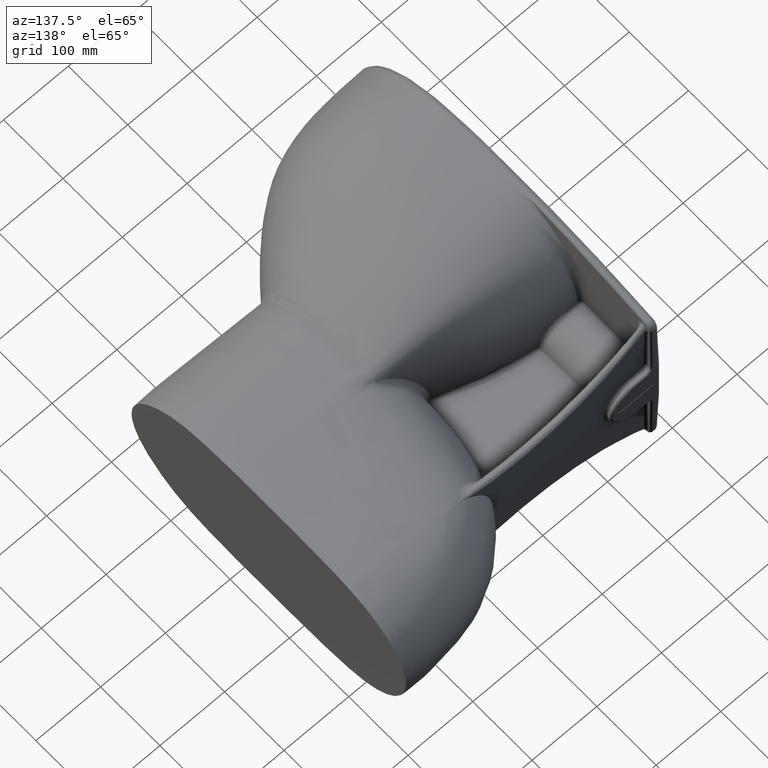
[diagram: clean part render]
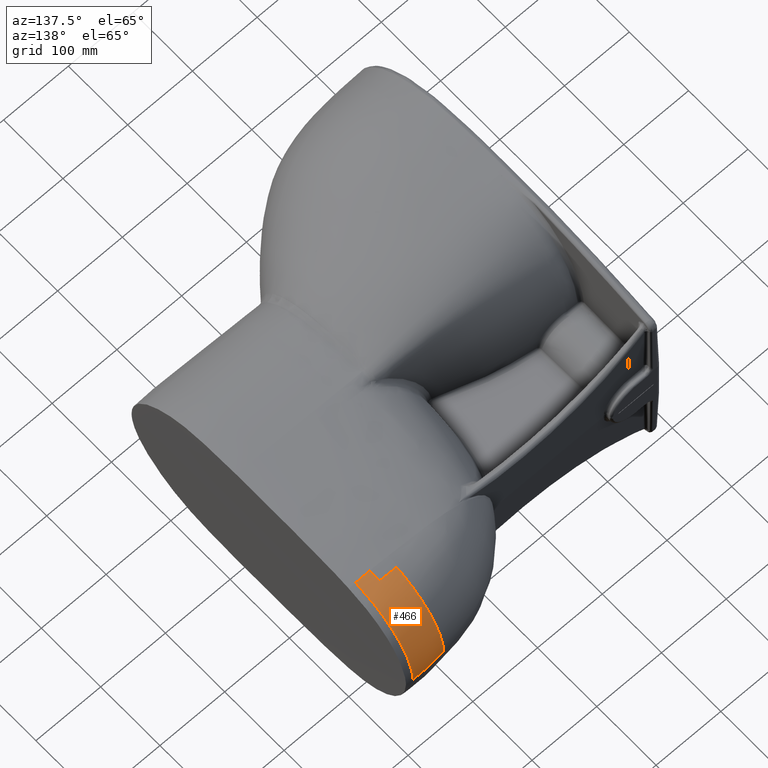
[diagram: same view with one face highlighted and labeled with its STEP entity id]
A machine part, auxiliary view. The second image highlights one B-rep face of the part: STEP entity #466.
In plain terms, the highlighted face is a freeform B-spline surface patch.
Its self-contained STEP definition (entity closure, byte-faithful):
#466=ADVANCED_FACE('',(#942),#753,.T.);
#753=B_SPLINE_SURFACE_WITH_KNOTS('',3,3,((#25066,#25067,#25068,#25069,#25070,
#25071,#25072,#25073,#25074,#25075,#25076),(#25077,#25078,#25079,#25080,
#25081,#25082,#25083,#25084,#25085,#25086,#25087),(#25088,#25089,#25090,
#25091,#25092,#25093,#25094,#25095,#25096,#25097,#25098),(#25099,#25100,
#25101,#25102,#25103,#25104,#25105,#25106,#25107,#25108,#25109),(#25110,
#25111,#25112,#25113,#25114,#25115,#25116,#25117,#25118,#25119,#25120),
(#25121,#25122,#25123,#25124,#25125,#25126,#25127,#25128,#25129,#25130,
#25131),(#25132,#25133,#25134,#25135,#25136,#25137,#25138,#25139,#25140,
#25141,#25142),(#25143,#25144,#25145,#25146,#25147,#25148,#25149,#25150,
#25151,#25152,#25153),(#25154,#25155,#25156,#25157,#25158,#25159,#25160,
#25161,#25162,#25163,#25164),(#25165,#25166,#25167,#25168,#25169,#25170,
#25171,#25172,#25173,#25174,#25175),(#25176,#25177,#25178,#25179,#25180,
#25181,#25182,#25183,#25184,#25185,#25186),(#25187,#25188,#25189,#25190,
#25191,#25192,#25193,#25194,#25195,#25196,#25197),(#25198,#25199,#25200,
#25201,#25202,#25203,#25204,#25205,#25206,#25207,#25208),(#25209,#25210,
#25211,#25212,#25213,#25214,#25215,#25216,#25217,#25218,#25219),(#25220,
#25221,#25222,#25223,#25224,#25225,#25226,#25227,#25228,#25229,#25230),
(#25231,#25232,#25233,#25234,#25235,#25236,#25237,#25238,#25239,#25240,
#25241),(#25242,#25243,#25244,#25245,#25246,#25247,#25248,#25249,#25250,
#25251,#25252),(#25253,#25254,#25255,#25256,#25257,#25258,#25259,#25260,
#25261,#25262,#25263)),.UNSPECIFIED.,.F.,.F.,.F.,(4,1,1,1,1,1,1,1,1,1,1,
1,1,1,1,4),(4,1,1,1,1,1,1,1,4),(0.,0.0063034516616152,0.0343280301372908,
0.090377187088642,0.146426344039993,0.202475500991344,0.314573814894047,
0.426672128796749,0.538770442699452,0.622844178126478,0.706917913553505,
0.790991648980532,0.847040805931883,0.903089962883234,0.987163698310261,
1.),(0.,0.0554178523160457,0.163160108762915,0.270902365209785,0.378644621656654,
0.486386878103524,0.701871390997263,0.917355903891003,1.),.UNSPECIFIED.);
#942=FACE_OUTER_BOUND('',#1239,.T.);
#1239=EDGE_LOOP('',(#1729,#1730,#1731,#1732,#1733,#1734,#1735));
#1729=ORIENTED_EDGE('',*,*,#3555,.F.);
#1730=ORIENTED_EDGE('',*,*,#3553,.T.);
#1731=ORIENTED_EDGE('',*,*,#3556,.F.);
#1732=ORIENTED_EDGE('',*,*,#3557,.F.);
#1733=ORIENTED_EDGE('',*,*,#3558,.F.);
#1734=ORIENTED_EDGE('',*,*,#3559,.F.);
#1735=ORIENTED_EDGE('',*,*,#3560,.F.);
#3067=VERTEX_POINT('',#24629);
#3068=VERTEX_POINT('',#24664);
#3069=VERTEX_POINT('',#25009);
#3070=VERTEX_POINT('',#25018);
#3071=VERTEX_POINT('',#25044);
#3072=VERTEX_POINT('',#25055);
#3073=VERTEX_POINT('',#25060);
#3553=EDGE_CURVE('',#3068,#3067,#4275,.T.);
#3555=EDGE_CURVE('',#3068,#3069,#4277,.T.);
#3556=EDGE_CURVE('',#3070,#3067,#4278,.T.);
#3557=EDGE_CURVE('',#3071,#3070,#4279,.T.);
#3558=EDGE_CURVE('',#3072,#3071,#4280,.T.);
#3559=EDGE_CURVE('',#3073,#3072,#4281,.T.);
#3560=EDGE_CURVE('',#3069,#3073,#4282,.T.);
#4275=B_SPLINE_CURVE_WITH_KNOTS('',3,(#24630,#24631,#24632,#24633,#24634,
#24635,#24636,#24637,#24638,#24639,#24640,#24641,#24642,#24643,#24644,#24645,
#24646,#24647,#24648,#24649,#24650,#24651,#24652,#24653,#24654,#24655,#24656,
#24657,#24658,#24659,#24660,#24661,#24662,#24663),.UNSPECIFIED.,.F.,.F.,
(4,2,2,2,2,2,2,2,2,2,2,2,2,2,2,2,4),(0.,0.0624999999999998,0.0937499999999998,
0.125,0.187499999999999,0.249999999999999,0.312499999999999,0.374999999999999,
0.437499999999998,0.499999999999998,0.562499999999998,0.624999999999997,
0.749999999999998,0.874999999999999,0.9375,0.96875,1.),.UNSPECIFIED.);
#4277=B_SPLINE_CURVE_WITH_KNOTS('',3,(#25005,#25006,#25007,#25008),
 .UNSPECIFIED.,.F.,.F.,(4,4),(0.,1.),.UNSPECIFIED.);
#4278=B_SPLINE_CURVE_WITH_KNOTS('',3,(#25010,#25011,#25012,#25013,#25014,
#25015,#25016,#25017),.UNSPECIFIED.,.F.,.F.,(4,2,2,4),(0.,0.25,0.5,1.),
 .UNSPECIFIED.);
#4279=B_SPLINE_CURVE_WITH_KNOTS('',3,(#25019,#25020,#25021,#25022,#25023,
#25024,#25025,#25026,#25027,#25028,#25029,#25030,#25031,#25032,#25033,#25034,
#25035,#25036,#25037,#25038,#25039,#25040,#25041,#25042,#25043),
 .UNSPECIFIED.,.F.,.F.,(4,1,1,1,1,1,1,1,1,1,1,1,1,1,1,1,1,1,1,1,1,1,4),
(0.,0.0281791137596642,0.0767710222259797,0.101066976459137,0.125362930692295,
0.149658884925452,0.173954839158611,0.198250793391768,0.222546747624925,
0.319730564557556,0.36832247302387,0.416914381490187,0.514098198422818,
0.562690106889133,0.611282015355448,0.659873923821763,0.70846583228808,
0.757057740754393,0.80564964922071,0.854241557687024,0.902833466153339,
0.951425374619656,1.),.UNSPECIFIED.);
#4280=B_SPLINE_CURVE_WITH_KNOTS('',3,(#25045,#25046,#25047,#25048,#25049,
#25050,#25051,#25052,#25053,#25054),.UNSPECIFIED.,.F.,.F.,(4,1,1,1,1,1,
1,4),(0.,0.20805783150571,0.352617995289327,0.497178159072945,0.641738322856563,
0.786298486640181,0.930858650423799,1.),.UNSPECIFIED.);
#4281=B_SPLINE_CURVE_WITH_KNOTS('',3,(#25056,#25057,#25058,#25059),
 .UNSPECIFIED.,.F.,.F.,(4,4),(0.,1.),.UNSPECIFIED.);
#4282=B_SPLINE_CURVE_WITH_KNOTS('',3,(#25061,#25062,#25063,#25064,#25065),
 .UNSPECIFIED.,.F.,.F.,(4,1,4),(0.,0.5,1.),.UNSPECIFIED.);
#24629=CARTESIAN_POINT('',(-10.4505085056305,96.9190733168738,-807.904962848657));
#24630=CARTESIAN_POINT('',(-10.4510301055452,0.259378185072257,-699.837724887234));
#24631=CARTESIAN_POINT('',(-10.4594142972625,3.61131767145482,-700.509099241361));
#24632=CARTESIAN_POINT('',(-10.4646612409124,6.83677177934043,-701.23456720461));
#24633=CARTESIAN_POINT('',(-10.4688024774439,11.0467622656211,-702.245819880816));
#24634=CARTESIAN_POINT('',(-10.469563373137,12.3440045660094,-702.569677948546));
#24635=CARTESIAN_POINT('',(-10.4700201278393,14.651873995144,-703.164157246456));
#24636=CARTESIAN_POINT('',(-10.4697253787209,15.6681920744161,-703.436340427447));
#24637=CARTESIAN_POINT('',(-10.4681142938203,18.5450122404816,-704.23425739218));
#24638=CARTESIAN_POINT('',(-10.4663417738691,20.2444497339371,-704.723784167994));
#24639=CARTESIAN_POINT('',(-10.4633890249753,24.3878314892648,-706.082149802724));
#24640=CARTESIAN_POINT('',(-10.4621138243182,26.9581702339135,-707.007545526988));
#24641=CARTESIAN_POINT('',(-10.4599708597696,32.7714369152277,-709.39260373245));
#24642=CARTESIAN_POINT('',(-10.4590655468664,35.9301577809517,-710.822891275887));
#24643=CARTESIAN_POINT('',(-10.4574562333832,42.2738097885852,-714.151376461461));
#24644=CARTESIAN_POINT('',(-10.4567682095061,45.5148318383327,-716.069676817491));
#24645=CARTESIAN_POINT('',(-10.4556495530116,52.2018303982114,-720.601942777466));
#24646=CARTESIAN_POINT('',(-10.4552195630913,55.6507738349493,-723.218535629761));
#24647=CARTESIAN_POINT('',(-10.4545235856136,62.271821260834,-728.849359060779));
#24648=CARTESIAN_POINT('',(-10.4542553587666,65.4049068802497,-731.838475153184));
#24649=CARTESIAN_POINT('',(-10.4538045047553,71.193665614571,-738.095770321192));
#24650=CARTESIAN_POINT('',(-10.4536231991555,73.872458587659,-741.378825972161));
#24651=CARTESIAN_POINT('',(-10.4532843961698,78.8424766012093,-748.292311943696));
#24652=CARTESIAN_POINT('',(-10.4531256256064,81.1424811548796,-751.940134362297));
#24653=CARTESIAN_POINT('',(-10.4526125782956,87.3596453004405,-763.131864901447));
#24654=CARTESIAN_POINT('',(-10.4521718078847,90.4972114158277,-770.875364445192));
#24655=CARTESIAN_POINT('',(-10.4511485443018,94.6797853300752,-785.247285222983));
#24656=CARTESIAN_POINT('',(-10.4506303749523,95.7927673682128,-792.002642632725));
#24657=CARTESIAN_POINT('',(-10.4500536775647,96.6060218837553,-799.726716826303));
#24658=CARTESIAN_POINT('',(-10.4499664891815,96.7444224619082,-801.984169646738));
#24659=CARTESIAN_POINT('',(-10.4500954379246,96.8625073102407,-804.761501762565));
#24660=CARTESIAN_POINT('',(-10.4501659446487,96.8861245269799,-805.565052369874));
#24661=CARTESIAN_POINT('',(-10.450304576571,96.9162256262558,-806.807532480216));
#24662=CARTESIAN_POINT('',(-10.4503641777497,96.9234747798919,-807.205880037308));
#24663=CARTESIAN_POINT('',(-10.4505085056304,96.9190733168738,-807.907648918895));
#24664=CARTESIAN_POINT('',(-10.4515384107355,0.258494679917415,-699.843172992396));
#25005=CARTESIAN_POINT('',(-10.4520672153245,0.257644415507822,-699.848828804342));
#25006=CARTESIAN_POINT('',(-17.8069281439721,0.258330466668946,-699.164228405787));
#25007=CARTESIAN_POINT('',(-25.176608204962,0.25898290377838,-698.674850578765));
#25008=CARTESIAN_POINT('',(-32.5570760085957,0.259592623142343,-698.671300235144));
#25009=CARTESIAN_POINT('',(-32.5570768195825,0.259485410146955,-698.672237770375));
#25010=CARTESIAN_POINT('',(-60.0743397147308,94.4228898085021,-807.904772622154));
#25011=CARTESIAN_POINT('',(-55.9563670660107,94.9228615088514,-807.905029450978));
#25012=CARTESIAN_POINT('',(-51.8403548863214,95.4382650414743,-807.904142747751));
#25013=CARTESIAN_POINT('',(-43.6042711188651,96.4377459051935,-807.89076079401));
#25014=CARTESIAN_POINT('',(-39.47258420593,96.8326832399241,-807.890486152215));
#25015=CARTESIAN_POINT('',(-27.0433258760888,97.4529399289521,-807.89268110988));
#25016=CARTESIAN_POINT('',(-18.7391438874056,97.2922627317066,-807.89862994893));
#25017=CARTESIAN_POINT('',(-10.4505085056305,96.9190733168738,-807.90227677842));
#25018=CARTESIAN_POINT('',(-60.0743391891272,94.4224509820528,-807.904962848657));
#25019=CARTESIAN_POINT('',(-59.4609218549206,15.9452735654217,-703.616185940341));
#25020=CARTESIAN_POINT('',(-59.4665183366123,17.1063844524271,-703.952063466695));
#25021=CARTESIAN_POINT('',(-59.4802185568156,20.2703571724235,-704.908030246822));
#25022=CARTESIAN_POINT('',(-59.4979849735192,24.4176166083033,-706.36070166829));
#25023=CARTESIAN_POINT('',(-59.5185832588102,28.3700641053457,-707.956345921534));
#25024=CARTESIAN_POINT('',(-59.5352983220818,31.3147708236022,-709.247227649589));
#25025=CARTESIAN_POINT('',(-59.5533618232913,34.236786535235,-710.630732910572));
#25026=CARTESIAN_POINT('',(-59.5726366322485,37.1299436117006,-712.110354586415));
#25027=CARTESIAN_POINT('',(-59.5930138111905,39.9876747372225,-713.690158861407));
#25028=CARTESIAN_POINT('',(-59.6357144224136,45.6193047028366,-717.05776093612));
#25029=CARTESIAN_POINT('',(-59.689081815409,51.9354361934308,-721.572548588701));
#25030=CARTESIAN_POINT('',(-59.7387100741765,58.7668313869262,-727.387343921126));
#25031=CARTESIAN_POINT('',(-59.78587277543,65.2930396757418,-733.637097274963));
#25032=CARTESIAN_POINT('',(-59.8427421260157,71.2423369473536,-740.58272254465));
#25033=CARTESIAN_POINT('',(-59.8977983024396,76.5043502128878,-748.138938038462));
#25034=CARTESIAN_POINT('',(-59.9354505896585,80.1106897082731,-754.072646257602));
#25035=CARTESIAN_POINT('',(-59.9668123233339,83.3675867515183,-760.239671682734));
#25036=CARTESIAN_POINT('',(-59.9935644808219,86.2446594763846,-766.620866575655));
#25037=CARTESIAN_POINT('',(-60.017344667927,88.7111704169103,-773.196399517128));
#25038=CARTESIAN_POINT('',(-60.0386927529633,90.7457825892047,-779.940356034094));
#25039=CARTESIAN_POINT('',(-60.0558872246162,92.3453297998522,-786.81594109216));
#25040=CARTESIAN_POINT('',(-60.0681373725143,93.5185079140564,-793.78912109999));
#25041=CARTESIAN_POINT('',(-60.0737543156312,94.2742384154681,-800.826996104407));
#25042=CARTESIAN_POINT('',(-60.0743391979539,94.4220619175188,-805.545932701392));
#25043=CARTESIAN_POINT('',(-60.0743385790308,94.4219757067972,-807.904957678007));
#25044=CARTESIAN_POINT('',(-59.4607743177608,15.9452508978365,-703.609637655536));
#25045=CARTESIAN_POINT('',(-34.5704984872603,15.9372132055224,-702.362242938784));
#25046=CARTESIAN_POINT('',(-36.2988932300514,15.9318030568206,-702.378264783206));
#25047=CARTESIAN_POINT('',(-39.2279880179992,15.9561260571194,-702.461064585367));
#25048=CARTESIAN_POINT('',(-43.3545620522898,15.961714049438,-702.64572953413));
#25049=CARTESIAN_POINT('',(-46.9523814478116,15.9578649501541,-702.841226510163));
#25050=CARTESIAN_POINT('',(-50.5490250054466,15.9532744558673,-703.057573977227));
#25051=CARTESIAN_POINT('',(-54.1455502387802,15.94785752553,-703.276340890448));
#25052=CARTESIAN_POINT('',(-57.1158076044097,15.9453981774809,-703.468209134133));
#25053=CARTESIAN_POINT('',(-58.8891967759079,15.9451798020453,-703.559736300487));
#25054=CARTESIAN_POINT('',(-59.4618722986313,15.9451732850893,-703.603847980276));
#25055=CARTESIAN_POINT('',(-34.5705084317312,15.9410491140655,-702.362385787767));
#25056=CARTESIAN_POINT('',(-32.5502593535626,15.9541242733794,-702.359418079949));
#25057=CARTESIAN_POINT('',(-33.2236626482427,15.9444287737371,-702.354742301523));
#25058=CARTESIAN_POINT('',(-33.8970896036999,15.939321081754,-702.356000584478));
#25059=CARTESIAN_POINT('',(-34.5704984872603,15.9372132055224,-702.362242938784));
#25060=CARTESIAN_POINT('',(-32.5502880718209,15.9549816270271,-702.359652394631));
#25061=CARTESIAN_POINT('',(-32.5570769242037,0.259378190918536,-698.673175305327));
#25062=CARTESIAN_POINT('',(-32.5565097904162,2.89393980494428,-699.203675897502));
#25063=CARTESIAN_POINT('',(-32.5545763790429,8.14432555120246,-700.356115635388));
#25064=CARTESIAN_POINT('',(-32.550258216528,13.3618124563346,-701.65070851792));
#25065=CARTESIAN_POINT('',(-32.5502593535626,15.9541242733794,-702.359418079949));
#25066=CARTESIAN_POINT('',(-60.3709671355373,94.3833368671955,-808.345215035599));
#25067=CARTESIAN_POINT('',(-59.4468923300608,94.4955392586467,-808.345394076277));
#25068=CARTESIAN_POINT('',(-56.7262147499894,94.8255940915078,-808.345796466539));
#25069=CARTESIAN_POINT('',(-52.2086924786486,95.3715261190156,-808.345570177713));
#25070=CARTESIAN_POINT('',(-46.8229727098752,96.0577996344946,-808.358657737472));
#25071=CARTESIAN_POINT('',(-41.4256320135535,96.6522935520699,-808.363616946546));
#25072=CARTESIAN_POINT('',(-34.2025482454597,97.1541528705535,-808.363843819742));
#25073=CARTESIAN_POINT('',(-25.1524707453349,97.3573626705168,-808.358252538195));
#25074=CARTESIAN_POINT('',(-16.527268386136,97.1715817959306,-808.350318733293));
#25075=CARTESIAN_POINT('',(-11.5235304580876,96.9642497486687,-808.345680994412));
#25076=CARTESIAN_POINT('',(-10.1366852622339,96.9009142851558,-808.344410421615));
#25077=CARTESIAN_POINT('',(-60.3709705266939,94.3851412998701,-808.177966448918));
#25078=CARTESIAN_POINT('',(-59.4468959115612,94.497348685227,-808.178062938765));
#25079=CARTESIAN_POINT('',(-56.7262188762003,94.8274180019511,-808.178222742326));
#25080=CARTESIAN_POINT('',(-52.2086973920928,95.3733724609059,-808.177596922287));
#25081=CARTESIAN_POINT('',(-46.8229802467863,96.0596961203656,-808.190152143601));
#25082=CARTESIAN_POINT('',(-41.4256405522808,96.654221437057,-808.194726860382));
#25083=CARTESIAN_POINT('',(-34.2025553183579,97.1560928639355,-808.194908720303));
#25084=CARTESIAN_POINT('',(-25.1524747303392,97.3592998828531,-808.189957128524));
#25085=CARTESIAN_POINT('',(-16.527268406842,97.173503288208,-808.183252790113));
#25086=CARTESIAN_POINT('',(-11.5235278827829,96.9661615343809,-808.179492353569));
#25087=CARTESIAN_POINT('',(-10.1366819455479,96.9028234657056,-808.178474682469));
#25088=CARTESIAN_POINT('',(-60.370995159731,94.3916168421629,-807.331090632081));
#25089=CARTESIAN_POINT('',(-59.4469215906783,94.5038496047026,-807.330762175993));
#25090=CARTESIAN_POINT('',(-56.726247557724,94.8339925459386,-807.329673239274));
#25091=CARTESIAN_POINT('',(-52.2087304915192,95.3800613114059,-807.326990948677));
#25092=CARTESIAN_POINT('',(-46.8230269584453,96.0666380818678,-807.336803960137));
#25093=CARTESIAN_POINT('',(-41.4256935659905,96.6613310744426,-807.339399201956));
#25094=CARTESIAN_POINT('',(-34.2026049065836,97.1633116020051,-807.339351761799));
#25095=CARTESIAN_POINT('',(-25.1525110001964,97.3665671710583,-807.3376946615));
#25096=CARTESIAN_POINT('',(-16.5272849013462,97.1807567258949,-807.337319348909));
#25097=CARTESIAN_POINT('',(-11.523531146979,96.9734011088925,-807.338074162135));
#25098=CARTESIAN_POINT('',(-10.1366814321804,96.9100592297436,-807.33835804248));
#25099=CARTESIAN_POINT('',(-60.3711609660184,94.3676832132197,-806.085678049651));
#25100=CARTESIAN_POINT('',(-59.4470910207368,94.4799633113952,-806.084607081419));
#25101=CARTESIAN_POINT('',(-56.7264275727616,94.8102442953385,-806.081336521375));
#25102=CARTESIAN_POINT('',(-52.2089276517136,95.3565345071026,-806.075063834109));
#25103=CARTESIAN_POINT('',(-46.8232542017009,96.043523343515,-806.080056060574));
#25104=CARTESIAN_POINT('',(-41.4259538681202,96.6386505877394,-806.079187447796));
#25105=CARTESIAN_POINT('',(-34.202927338572,97.1416124217434,-806.078767698026));
#25106=CARTESIAN_POINT('',(-25.1528491212768,97.3459767959666,-806.082887512027));
#25107=CARTESIAN_POINT('',(-16.5275919929359,97.1612019666314,-806.093574518454));
#25108=CARTESIAN_POINT('',(-11.5238122611964,96.9543831244494,-806.102210039567));
#25109=CARTESIAN_POINT('',(-10.1369551145989,96.8911830013025,-806.104764736825));
#25110=CARTESIAN_POINT('',(-60.3708880610211,94.2462767135229,-801.829769107527));
#25111=CARTESIAN_POINT('',(-59.4468032574277,94.3582021370564,-801.826699244305));
#25112=CARTESIAN_POINT('',(-56.7260959923082,94.6874359339921,-801.817555420472));
#25113=CARTESIAN_POINT('',(-52.2085233100111,95.2319712436548,-801.801614354916));
#25114=CARTESIAN_POINT('',(-46.8227706103933,95.9171958938389,-801.79363838607));
#25115=CARTESIAN_POINT('',(-41.4254465775535,96.5107881340499,-801.783404537612));
#25116=CARTESIAN_POINT('',(-34.2025841497373,97.0133275894104,-801.781733244638));
#25117=CARTESIAN_POINT('',(-25.1527379376799,97.2174755415416,-801.801325780032));
#25118=CARTESIAN_POINT('',(-16.5277522604451,97.0330153188491,-801.841892252552));
#25119=CARTESIAN_POINT('',(-11.5241550320683,96.8263430456703,-801.871892481238));
#25120=CARTESIAN_POINT('',(-10.1373506390191,96.7631719259504,-801.880609544496));
#25121=CARTESIAN_POINT('',(-60.3711307800797,93.6670651259013,-795.170948770856));
#25122=CARTESIAN_POINT('',(-59.4470228382307,93.778513993172,-795.164929212103));
#25123=CARTESIAN_POINT('',(-56.726247519208,94.106342815433,-795.147119107683));
#25124=CARTESIAN_POINT('',(-52.2085636570673,94.648544717814,-795.116914298996));
#25125=CARTESIAN_POINT('',(-46.8226721529666,95.3312185357753,-795.089720463081));
#25126=CARTESIAN_POINT('',(-41.425342344472,95.9232948460345,-795.065546123783));
#25127=CARTESIAN_POINT('',(-34.2028856152619,96.428558322792,-795.06149965605));
#25128=CARTESIAN_POINT('',(-25.1534618082997,96.6375402108961,-795.103772109492));
#25129=CARTESIAN_POINT('',(-16.5288646142476,96.4594644997125,-795.188647190496));
#25130=CARTESIAN_POINT('',(-11.5255195217545,96.2564865315229,-795.250485301563));
#25131=CARTESIAN_POINT('',(-10.138788438501,96.194313404198,-795.268397763134));
#25132=CARTESIAN_POINT('',(-60.3708050781969,91.8750721884567,-783.712264006498));
#25133=CARTESIAN_POINT('',(-59.4465944775506,91.9847766524046,-783.700842877816));
#25134=CARTESIAN_POINT('',(-56.7255173653327,92.3074688901781,-783.667162980347));
#25135=CARTESIAN_POINT('',(-52.2073380553902,92.841160100152,-783.610834413609));
#25136=CARTESIAN_POINT('',(-46.8208050377676,93.5137754617424,-783.548402713305));
#25137=CARTESIAN_POINT('',(-41.423171849326,94.0984712915998,-783.498472819963));
#25138=CARTESIAN_POINT('',(-34.2013497100779,94.6049863207132,-783.488882302378));
#25139=CARTESIAN_POINT('',(-25.1529728961526,94.8219267246413,-783.572026750291));
#25140=CARTESIAN_POINT('',(-16.5297124904693,94.6580423735064,-783.737995863009));
#25141=CARTESIAN_POINT('',(-11.5272952269684,94.4641822277062,-783.858450724318));
#25142=CARTESIAN_POINT('',(-10.1408340963236,94.4045431888845,-783.893319014551));
#25143=CARTESIAN_POINT('',(-60.3702449515319,87.0774517346008,-766.864013388441));
#25144=CARTESIAN_POINT('',(-59.4457711874823,87.1832319955638,-766.84510686542));
#25145=CARTESIAN_POINT('',(-56.7239206949691,87.4943779260546,-766.789435798196));
#25146=CARTESIAN_POINT('',(-52.2044713249022,88.0089864216496,-766.69690023328));
#25147=CARTESIAN_POINT('',(-46.8162615294579,88.6580071295434,-766.585466686645));
#25148=CARTESIAN_POINT('',(-41.4176514203425,89.2252181322885,-766.499295409267));
#25149=CARTESIAN_POINT('',(-34.196616959148,89.7313828672229,-766.47921990624));
#25150=CARTESIAN_POINT('',(-25.1502004576618,89.9660164634597,-766.618099102463));
#25151=CARTESIAN_POINT('',(-16.5298592184421,89.83651669512,-766.897476653046));
#25152=CARTESIAN_POINT('',(-11.5295349432408,89.6658608949653,-767.100748025458));
#25153=CARTESIAN_POINT('',(-10.1436848527705,89.6127742492564,-767.159637125769));
#25154=CARTESIAN_POINT('',(-60.3693186524832,75.8253816710107,-745.805171371853));
#25155=CARTESIAN_POINT('',(-59.4442440070391,75.9225202164324,-745.77726206671));
#25156=CARTESIAN_POINT('',(-56.7206277704968,76.2082491778427,-745.695142498819));
#25157=CARTESIAN_POINT('',(-52.198275490089,76.6808811724654,-745.55903277811));
#25158=CARTESIAN_POINT('',(-46.8062109777734,77.2767583443868,-745.388403471959));
#25159=CARTESIAN_POINT('',(-41.4050607891795,77.8031743688522,-745.257274530553));
#25160=CARTESIAN_POINT('',(-34.184452143346,78.2979924214928,-745.217316729818));
#25161=CARTESIAN_POINT('',(-25.1413898808156,78.5644001243191,-745.420229071107));
#25162=CARTESIAN_POINT('',(-16.5270016566795,78.5076677942985,-745.837550297224));
#25163=CARTESIAN_POINT('',(-11.5311075700974,78.3889011953447,-746.143713480411));
#25164=CARTESIAN_POINT('',(-10.1465577241211,78.350688765802,-746.232609018869));
#25165=CARTESIAN_POINT('',(-60.369865104464,62.0891395289689,-729.749713411054));
#25166=CARTESIAN_POINT('',(-59.4441115900566,62.1761933319257,-729.715617187594));
#25167=CARTESIAN_POINT('',(-56.7185006207747,62.4322662577802,-729.615321221106));
#25168=CARTESIAN_POINT('',(-52.1928681816042,62.8559282806842,-729.44922185899));
#25169=CARTESIAN_POINT('',(-46.7964203670986,63.3891104528436,-729.237687914083));
#25170=CARTESIAN_POINT('',(-41.3922621998687,63.8663901752182,-729.073984676418));
#25171=CARTESIAN_POINT('',(-34.1714670806845,64.3406553796611,-729.011259111176));
#25172=CARTESIAN_POINT('',(-25.1316025283723,64.6399345916064,-729.254539408461));
#25173=CARTESIAN_POINT('',(-16.5235136154795,64.6674663214884,-729.768825768552));
#25174=CARTESIAN_POINT('',(-11.5324646094481,64.6108566159749,-730.14999971116));
#25175=CARTESIAN_POINT('',(-10.1493471360894,64.5906214013348,-730.260969248314));
#25176=CARTESIAN_POINT('',(-60.372762197922,46.3155636930584,-717.231242005692));
#25177=CARTESIAN_POINT('',(-59.4463017238375,46.3914466400298,-717.192996270162));
#25178=CARTESIAN_POINT('',(-56.7186135331587,46.6146705581184,-717.080508544016));
#25179=CARTESIAN_POINT('',(-52.1895640320582,46.9840672055943,-716.894243678431));
#25180=CARTESIAN_POINT('',(-46.7885372772864,47.4475314606169,-716.655100942378));
#25181=CARTESIAN_POINT('',(-41.3811572205338,47.8689698356866,-716.46782147659));
#25182=CARTESIAN_POINT('',(-34.1596689392941,48.3130337797987,-716.380337776882));
#25183=CARTESIAN_POINT('',(-25.1226247398937,48.6441280636163,-716.646868741218));
#25184=CARTESIAN_POINT('',(-16.5206623600149,48.7638499776737,-717.228399347429));
#25185=CARTESIAN_POINT('',(-11.5345010969236,48.7773998980112,-717.664335047347));
#25186=CARTESIAN_POINT('',(-10.1528412851537,48.7776159300268,-717.791615219734));
#25187=CARTESIAN_POINT('',(-60.3771508324325,33.2659629381666,-709.872957152678));
#25188=CARTESIAN_POINT('',(-59.4501675908693,33.3328492032321,-709.832915746201));
#25189=CARTESIAN_POINT('',(-56.7209436736614,33.5296185917585,-709.715150189184));
#25190=CARTESIAN_POINT('',(-52.1893696782103,33.8553066105229,-709.520095214072));
#25191=CARTESIAN_POINT('',(-46.7849238293354,34.2624282216743,-709.268896406862));
#25192=CARTESIAN_POINT('',(-41.375170227832,34.6381601181869,-709.0695640677));
#25193=CARTESIAN_POINT('',(-34.1531410849794,35.0541562602064,-708.961058640659));
#25194=CARTESIAN_POINT('',(-25.1180802971458,35.4084347586854,-709.233477371767));
#25195=CARTESIAN_POINT('',(-16.5204949928774,35.601593106647,-709.846489995535));
#25196=CARTESIAN_POINT('',(-11.5379406477143,35.6721222740725,-710.31095517553));
#25197=CARTESIAN_POINT('',(-10.1573668259584,35.6890251180932,-710.446928462586));
#25198=CARTESIAN_POINT('',(-60.3820612645581,22.2347211498507,-705.535676339144));
#25199=CARTESIAN_POINT('',(-59.4546750138106,22.2939229900939,-705.495144538604));
#25200=CARTESIAN_POINT('',(-56.7242674145679,22.4680966814192,-705.375935246771));
#25201=CARTESIAN_POINT('',(-52.1907489527158,22.7564372728317,-705.17840106281));
#25202=CARTESIAN_POINT('',(-46.7836394720607,23.1153168253251,-704.923772058371));
#25203=CARTESIAN_POINT('',(-41.3720705987002,23.4513879412142,-704.718852452262));
#25204=CARTESIAN_POINT('',(-34.1496245133782,23.8400957268357,-704.591823814779));
#25205=CARTESIAN_POINT('',(-25.1160868581236,24.2131662890693,-704.860680341128));
#25206=CARTESIAN_POINT('',(-16.5218677048077,24.4703910175239,-705.485254457744));
#25207=CARTESIAN_POINT('',(-11.5421805737227,24.5915664341689,-705.963509263251));
#25208=CARTESIAN_POINT('',(-10.1624784338949,24.6233720457077,-706.103885811895));
#25209=CARTESIAN_POINT('',(-60.386585265594,16.3821364052474,-703.760974400481));
#25210=CARTESIAN_POINT('',(-59.4590364242928,16.4373960773953,-703.720899902859));
#25211=CARTESIAN_POINT('',(-56.7281519833439,16.5999801344206,-703.60302870693));
#25212=CARTESIAN_POINT('',(-52.1938559437887,16.869175319589,-703.407591063324));
#25213=CARTESIAN_POINT('',(-46.7855994158493,17.20307440947,-703.156047118435));
#25214=CARTESIAN_POINT('',(-41.3734105838554,17.5184797454837,-702.950735425304));
#25215=CARTESIAN_POINT('',(-34.1512419675533,17.8918606125639,-702.809352002053));
#25216=CARTESIAN_POINT('',(-25.1187089583972,18.2735698812725,-703.068646231975));
#25217=CARTESIAN_POINT('',(-16.526122321089,18.5630963765955,-703.689654698725));
#25218=CARTESIAN_POINT('',(-11.5478862942013,18.7101889037739,-704.169827766057));
#25219=CARTESIAN_POINT('',(-10.1686344704226,18.7496459219249,-704.311101768323));
#25220=CARTESIAN_POINT('',(-60.3909307036062,10.6254385015458,-702.17771649826));
#25221=CARTESIAN_POINT('',(-59.4632652664181,10.677579437922,-702.138358082863));
#25222=CARTESIAN_POINT('',(-56.7320392427256,10.8309953768949,-702.022583944569));
#25223=CARTESIAN_POINT('',(-52.1971894720794,11.0850525959959,-701.830482612935));
#25224=CARTESIAN_POINT('',(-46.7880752099152,11.3991536234578,-701.583840070385));
#25225=CARTESIAN_POINT('',(-41.3754975516452,11.6979732593334,-701.379415380976));
#25226=CARTESIAN_POINT('',(-34.1537349382761,12.0581042380286,-701.223948486743));
#25227=CARTESIAN_POINT('',(-25.1219261478808,12.4430549904637,-701.47169420264));
#25228=CARTESIAN_POINT('',(-16.5303225854192,12.7527933787195,-702.085221644358));
#25229=CARTESIAN_POINT('',(-11.5530480992603,12.9166885006958,-702.564493885458));
#25230=CARTESIAN_POINT('',(-10.1741036239534,12.9611326264793,-702.705850618194));
#25231=CARTESIAN_POINT('',(-60.3849011891723,2.97970436983007,-700.359758362883));
#25232=CARTESIAN_POINT('',(-59.4570910151913,3.02869033604062,-700.321087923623));
#25233=CARTESIAN_POINT('',(-56.7254402464173,3.17282820251549,-700.207329041685));
#25234=CARTESIAN_POINT('',(-52.1898959416141,3.4115370811562,-700.018445726228));
#25235=CARTESIAN_POINT('',(-46.7797902980325,3.70594298698987,-699.776514949139));
#25236=CARTESIAN_POINT('',(-41.366598683983,3.98743819024583,-699.573263800436));
#25237=CARTESIAN_POINT('',(-34.1447283662496,4.33063720973572,-699.40608677847));
#25238=CARTESIAN_POINT('',(-25.1130007268913,4.71220911921122,-699.643502299138));
#25239=CARTESIAN_POINT('',(-16.5217429742833,5.03395343824663,-700.249468007857));
#25240=CARTESIAN_POINT('',(-11.5450158483295,5.20957097530826,-700.72705465889));
#25241=CARTESIAN_POINT('',(-10.1662590930421,5.25758440050768,-700.868211802148));
#25242=CARTESIAN_POINT('',(-60.3739328109048,-2.23374582869141,-699.317751599966));
#25243=CARTESIAN_POINT('',(-59.4460252808708,-2.18685997119753,-699.279538741783));
#25244=CARTESIAN_POINT('',(-56.7140887178409,-2.04889874848649,-699.167120538939));
#25245=CARTESIAN_POINT('',(-52.1780762909806,-1.82041477672124,-698.980383198612));
#25246=CARTESIAN_POINT('',(-46.7673129337166,-1.53906488957388,-698.74157506428));
#25247=CARTESIAN_POINT('',(-41.3536925211382,-1.26920265852114,-698.539213431005));
#25248=CARTESIAN_POINT('',(-34.1316721173924,-0.937940099789167,-698.364889623947));
#25249=CARTESIAN_POINT('',(-25.0999013935762,-0.559256507368912,-698.595694521606));
#25250=CARTESIAN_POINT('',(-16.5087764354639,-0.230013860725452,-699.196479400778));
#25251=CARTESIAN_POINT('',(-11.5323472342585,-0.0467609524847254,-699.672639877896));
#25252=CARTESIAN_POINT('',(-10.1536959335361,0.00359341488740969,-699.813561111836));
#25253=CARTESIAN_POINT('',(-60.372357286748,-2.93147137063615,-699.181629983643));
#25254=CARTESIAN_POINT('',(-59.4444367683244,-2.88486530473388,-699.143478193925));
#25255=CARTESIAN_POINT('',(-56.7124620756775,-2.74772699036873,-699.031238922219));
#25256=CARTESIAN_POINT('',(-52.1763871815079,-2.52060538796733,-698.844788078464));
#25257=CARTESIAN_POINT('',(-46.7655362239205,-2.24099397573741,-698.606396537326));
#25258=CARTESIAN_POINT('',(-41.3518583541779,-1.97268338335416,-698.404155580796));
#25259=CARTESIAN_POINT('',(-34.1298166763275,-1.64302284708777,-698.228889428779));
#25260=CARTESIAN_POINT('',(-25.0980384249045,-1.2647380235442,-698.458816726208));
#25261=CARTESIAN_POINT('',(-16.5069292092617,-0.934509886109855,-699.058907487949));
#25262=CARTESIAN_POINT('',(-11.5305383723528,-0.750246300756299,-699.534872198828));
#25263=CARTESIAN_POINT('',(-10.1519007338915,-0.699581733298468,-699.675760111845));